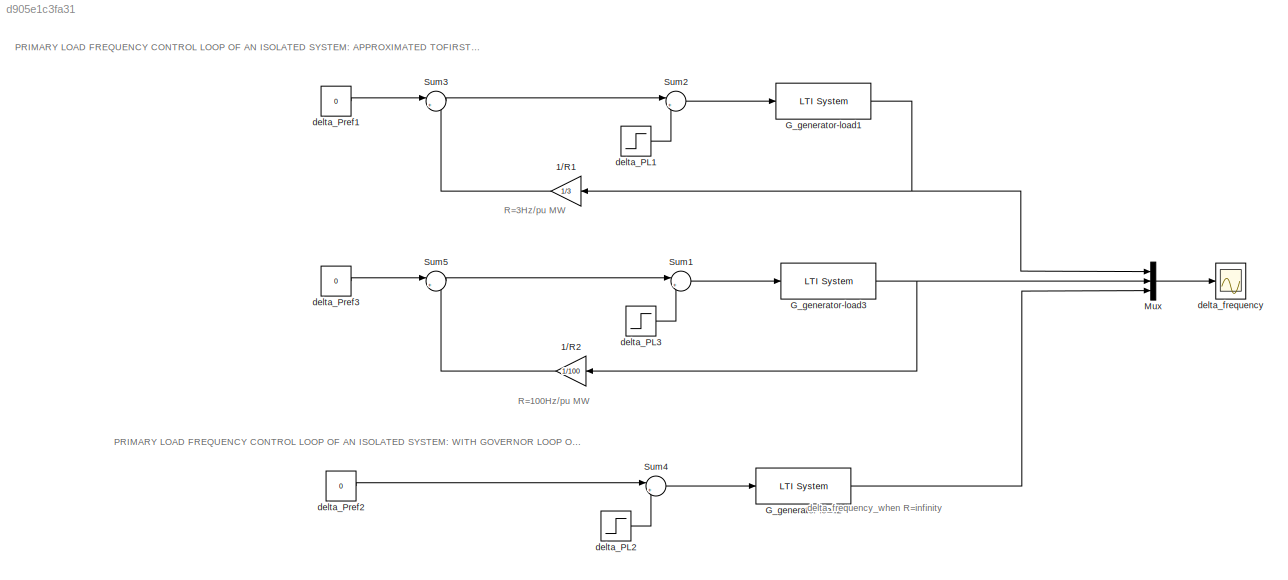
MODEL slx_d905e1c3fa31
KIND model
BLOCK [Gain] 1//R1
  Gain = 1/3
  OutDataTypeStr = Inherit: Inherit via internal rule
  ParamDataTypeStr = Inherit: Inherit via internal rule
  SaturateOnIntegerOverflow = off
BLOCK [Gain] 1//R2
  Gain = 1/100
  OutDataTypeStr = Inherit: Inherit via internal rule
  ParamDataTypeStr = Inherit: Inherit via internal rule
  SaturateOnIntegerOverflow = off
BLOCK [Reference] G_generator-load1  REF=cstblocks/LTI System
  IC = []
  Ports = [1, 1]
  SourceBlock = cstblocks/LTI System
  SourceType = LTI Block
  sys = tf(100,[20 1])
BLOCK [Reference] G_generator-load2  REF=cstblocks/LTI System
  IC = []
  Ports = [1, 1]
  SourceBlock = cstblocks/LTI System
  SourceType = LTI Block
  sys = tf(100,[20 1])
BLOCK [Reference] G_generator-load3  REF=cstblocks/LTI System
  IC = []
  Ports = [1, 1]
  SourceBlock = cstblocks/LTI System
  SourceType = LTI Block
  sys = tf(100,[20 1])
BLOCK [Mux] Mux
  DisplayOption = bar
  Inputs = 3
  Ports = [3, 1]
BLOCK [Sum] Sum1
  IconShape = round
  InputSameDT = off
  Inputs = |+-
  OutDataTypeStr = Inherit: Inherit via internal rule
  Ports = [2, 1]
  SaturateOnIntegerOverflow = off
BLOCK [Sum] Sum2
  IconShape = round
  InputSameDT = off
  Inputs = |+-
  OutDataTypeStr = Inherit: Inherit via internal rule
  Ports = [2, 1]
  SaturateOnIntegerOverflow = off
BLOCK [Sum] Sum3
  IconShape = round
  InputSameDT = off
  Inputs = |+-
  OutDataTypeStr = Inherit: Inherit via internal rule
  Ports = [2, 1]
  SaturateOnIntegerOverflow = off
BLOCK [Sum] Sum4
  IconShape = round
  InputSameDT = off
  Inputs = |+-
  OutDataTypeStr = Inherit: Inherit via internal rule
  Ports = [2, 1]
  SaturateOnIntegerOverflow = off
BLOCK [Sum] Sum5
  IconShape = round
  InputSameDT = off
  Inputs = |+-
  OutDataTypeStr = Inherit: Inherit via internal rule
  Ports = [2, 1]
  SaturateOnIntegerOverflow = off
BLOCK [Step] delta_PL1
  After = 0.01
  SampleTime = 0
BLOCK [Step] delta_PL2
  After = 0.01
  SampleTime = 0
BLOCK [Step] delta_PL3
  After = 0.01
  SampleTime = 0
BLOCK [Constant] delta_Pref1
  Value = 0
BLOCK [Constant] delta_Pref2
  Value = 0
BLOCK [Constant] delta_Pref3
  Value = 0
BLOCK [Scope] delta_frequency
  Floating = off
  NumInputPorts = 1
  Ports = [1]
  ShowLegends = off
  YMax = 0.1
  YMin = -1
ANNOTATION (root): PRIMARY LOAD FREQUENCY CONTROL LOOP OF AN ISOLATED SYSTEM: APPROXIMATED TOFIRST ORDER
ANNOTATION (root): PRIMARY LOAD FREQUENCY CONTROL LOOP OF AN ISOLATED SYSTEM: WITH GOVERNOR LOOP OPEN R=infinitty
ANNOTATION (root): R=100Hz/pu MW
ANNOTATION (root): R=3Hz/pu MW
ANNOTATION (root): delta_frequency_when R=infinity
LINE 1//R1:1 -> Sum3:2
LINE 1//R2:1 -> Sum5:2
NET G_generator-load1:1 -> 1//R1:1, Mux:1
LINE G_generator-load2:1 -> Mux:3
NET G_generator-load3:1 -> 1//R2:1, Mux:2
LINE Mux:1 -> delta_frequency:1
LINE Sum1:1 -> G_generator-load3:1
LINE Sum2:1 -> G_generator-load1:1
LINE Sum3:1 -> Sum2:1
LINE Sum4:1 -> G_generator-load2:1
LINE Sum5:1 -> Sum1:1
LINE delta_PL1:1 -> Sum2:2
LINE delta_PL2:1 -> Sum4:2
LINE delta_PL3:1 -> Sum1:2
LINE delta_Pref1:1 -> Sum3:1
LINE delta_Pref2:1 -> Sum4:1
LINE delta_Pref3:1 -> Sum5:1
note: NET lines group one-source signal fan-out (src -> all destinations, sorted); 1:1 wires keep LINE
